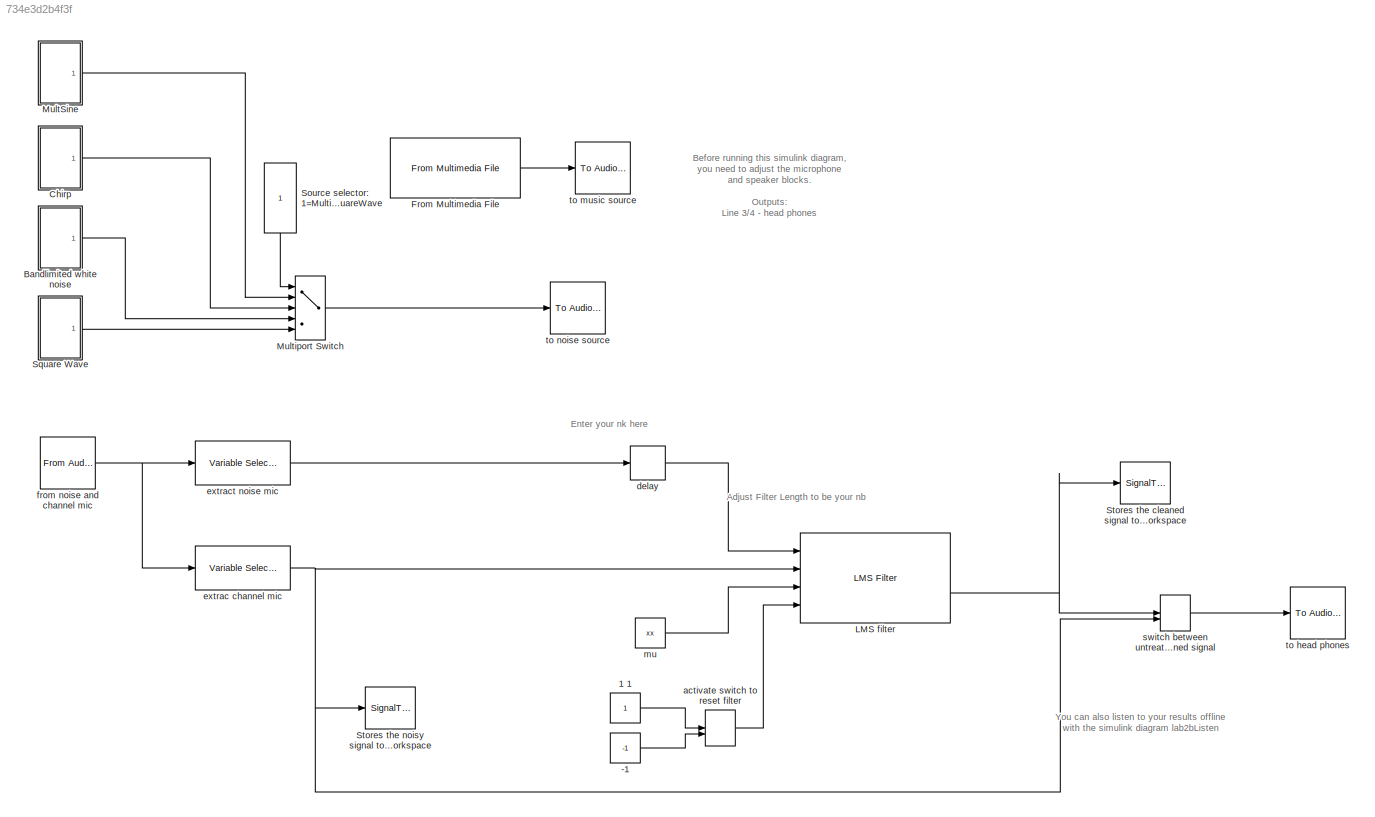
MODEL slx_734e3d2b4f3f
KIND model
BLOCK [Constant] -1
  Value = -1
BLOCK [Constant] 1 1
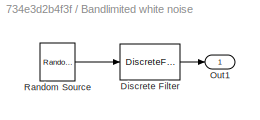
BLOCK [SubSystem] Bandlimited white noise
  Ports = [0, 1]
  RequestExecContextInheritance = off
BLOCK [DiscreteFilter] Bandlimited white noise/Discrete Filter
  Denominator = [1.000000 -0.000000 -2.547368 0.000000 2.994845 -0.000000 -1.778046 0.000000 0.534570 -0.000000 -0.024287]
  InputPortMap = u0
  Numerator = [0.277472 0.000000 -1.387362 0.000000 2.774724 0.000000 -2.774724 0.000000 1.387362 0.000000 -0.277472]*0.3
  Ports = [1, 1]
  SampleTime = sampletime
BLOCK [Outport] Bandlimited white noise/Out1
  IconDisplay = Port number
BLOCK [Reference] Bandlimited white noise/Random Source  REF=dspsrcs4/Random
Source
  CltLength = 12
  DataType = Double
  IsInherit = off
  MaxVal = 1
  MeanVal = 0
  MinVal = -1
  NormMethod = Ziggurat
  OutComplex = Real
  Ports = [0, 1]
  RepMode = Specify seed
  SampFrame = 1
  SampMode = Discrete
  SampTime = sampletime
  SourceBlock = dspsrcs4/Random\nSource
  SourceType = Random Source
  SrcType = Gaussian
  UserDataPersistent = on
  VarVal = 0.6
  rawSeed = 1
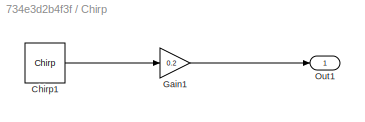
BLOCK [SubSystem] Chirp
  Ports = [0, 1]
  RequestExecContextInheritance = off
BLOCK [Reference] Chirp/Chirp1  REF=dspsrcs4/Chirp
  Ports = [0, 1]
  SourceBlock = dspsrcs4/Chirp
  SourceType = Chirp
  Ts = sampletime
  Tsweep = 10
  datatype = Double
  f0 = 600
  f1 = 800
  mode = Bidirectional
  phase = 0
  spf = 1
  sweep = Linear
  t1 = 1
BLOCK [Gain] Chirp/Gain1
  Gain = 0.2
BLOCK [Outport] Chirp/Out1
  IconDisplay = Port number
BLOCK [Reference] From Multimedia File  REF=dspvision/From Multimedia File
  Ports = [0, 1]
  SourceBlock = dspvision/From Multimedia File
  SourceType = From Multimedia File
  audioDataType = double
  audioFrameSize = 1024
  colorVideoFormat = Separate color signals
  computeAudioFrameSize = off
  dataOrg = Column-major
  fourcc = RGB
  inheritSampleTime = on
  inputFilename = guns.wav
  isIntensityVideo = off
  loop = on
  noAudioOutput = off
  numPlays = inf
  outSamplingMode = Frame based
  outputEOF = off
  outputStreams = Audio only
  userDefinedSampleTime = 1/30
  videoDataType = single
BLOCK [Reference] LMS filter  REF=dspadpt3/LMS Filter
  Adapt = off
  Algo = LMS
  L = xx
  LockScale = off
  Ports = [4, 2]
  ShowPortLabels = off
  SourceBlock = dspadpt3/LMS Filter
  SourceType = LMS Filter
  accum2FracLength = 20
  accum2Mode = User-defined
  accumFracLength = 20
  accumMode = Same as first input
  accumWordLength = 32
  addnparflag = off
  firstCoeffFracLength = 15
  firstCoeffMode = Same word length as first input
  firstCoeffWordLength = 16
  ic = 0
  leakage = 1.0
  memoryFracLength = 15
  memoryMode = Same as first input
  memoryWordLength = 16
  mu = 0.5
  overflowMode = off
  prodOutput2FracLength = 20
  prodOutput2Mode = User-defined
  prodOutput3FracLength = 20
  prodOutput3Mode = User-defined
  prodOutput4FracLength = 20
  prodOutput4Mode = User-defined
  prodOutputFracLength = 20
  prodOutputMode = Same as first input
  prodOutputWordLength = 32
  quotientFracLength = 20
  quotientMode = User-defined
  resetflag = Either edge
  roundingMode = Floor
  secondCoeffFracLength = 15
  secondCoeffMode = User-defined
  secondCoeffWordLength = 2
  stepflag = Input port
  weights = off
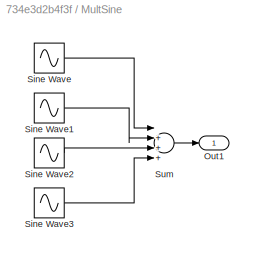
BLOCK [SubSystem] MultSine
  Ports = [0, 1]
  RequestExecContextInheritance = off
BLOCK [Outport] MultSine/Out1
  IconDisplay = Port number
BLOCK [Sin] MultSine/Sine Wave
  Amplitude = .1
  Frequency = 2*2400
  Ports = [0, 1]
  SampleTime = sampletime
BLOCK [Sin] MultSine/Sine Wave1
  Amplitude = .1
  Frequency = 2*3000
  Ports = [0, 1]
  SampleTime = sampletime
BLOCK [Sin] MultSine/Sine Wave2
  Amplitude = .1
  Frequency = 2*3600
  Ports = [0, 1]
  SampleTime = sampletime
BLOCK [Sin] MultSine/Sine Wave3
  Amplitude = .1
  Frequency = 2*4200
  Ports = [0, 1]
  SampleTime = sampletime
BLOCK [Sum] MultSine/Sum
  Inputs = |++++
  Ports = [4, 1]
BLOCK [MultiPortSwitch] Multiport Switch
  Inputs = 4
  Ports = [5, 1]
BLOCK [Constant] Source selector: 1=MultiSine 2=Chirp 3=White noise 4=SquareWave
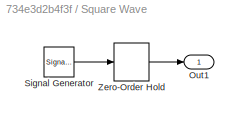
BLOCK [SubSystem] Square Wave
  Ports = [0, 1]
  RequestExecContextInheritance = off
BLOCK [Outport] Square Wave/Out1
  IconDisplay = Port number
BLOCK [SignalGenerator] Square Wave/Signal Generator
  Amplitude = .1
  Frequency = 100
  Ports = [0, 1]
  WaveForm = square
BLOCK [ZeroOrderHold] Square Wave/Zero-Order Hold
  SampleTime = sampletime
BLOCK [SignalToWorkspace] Stores the cleaned signal to the workspace
  CopyFcn = dspblkcopystw(gcbh);
  MaxDataPoints = inf
  Ports = [1]
  SaveFormat = Timeseries
  VariableName = yCleaned
BLOCK [SignalToWorkspace] Stores the noisy signal to the workspace
  CopyFcn = dspblkcopystw(gcbh);
  MaxDataPoints = inf
  Ports = [1]
  SaveFormat = Timeseries
  VariableName = yNoisy
BLOCK [ManualSwitch] activate switch to reset filter
BLOCK [Delay] delay
  DelayLength = xx
  InitialCondition = 0
  InputPortMap = u0
  InputProcessing = Inherited
  Ports = [1, 1]
BLOCK [Reference] extrac channel mic  REF=dspindex/Variable
Selector
  Elements = [2]
  FillMode = on
  FillValues = 0
  IdxMode = Fixed
  NumInputs = 1
  Ports = [1, 1]
  ShowPortLabels = off
  SourceBlock = dspindex/Variable\nSelector
  SourceType = Variable Selector
  ZerOneIdxMode = One-based
  errmode = Clip Index
  rowsOrCols = Columns
BLOCK [Reference] extract noise mic  REF=dspindex/Variable
Selector
  Elements = [1]
  FillMode = on
  FillValues = 0
  IdxMode = Fixed
  NumInputs = 1
  Ports = [1, 1]
  ShowPortLabels = off
  SourceBlock = dspindex/Variable\nSelector
  SourceType = Variable Selector
  ZerOneIdxMode = One-based
  errmode = Clip Index
  rowsOrCols = Columns
BLOCK [Reference] from noise and channel mic  REF=dspsrcs4/From Audio
Device
  Ports = [0, 1]
  SourceBlock = dspsrcs4/From Audio\nDevice
  SourceType = From Audio Device
  autoBufferSize = on
  bufferSize = 4096
  defaultInputChannelMapping = on
  deviceDatatype = Determine from output data type
  deviceName = FCA1616 Mic 1/2 (3- Behringer FCA1616 WDM)
  frameSize = 1
  inputChannelMapping = 1:2
  numChannels = 2
  outputDatatype = double
  queueDuration = 0.1
  sampleRate = 1/sampletime
BLOCK [Constant] mu 
  Value = xx
BLOCK [ManualSwitch] switch between untreated and cleaned signal
BLOCK [Reference] to head phones   REF=dspsnks4/To Audio
Device
  Ports = [1]
  SourceBlock = dspsnks4/To Audio\nDevice
  SourceType = To Audio Device
  autoBufferSize = on
  bufferSize = 4096
  defaultOutputChannelMapping = on
  deviceDatatype = Determine from input data type
  deviceName = FCA1616 Line 3/4 (3- Behringer FCA1616 WDM)
  inheritSampleRate = off
  outputChannelMapping = 1:2
  queueDuration = 1
  sampleRate = 1/sampletime
BLOCK [Reference] to music source  REF=dspsnks4/To Audio
Device
  Ports = [1]
  SourceBlock = dspsnks4/To Audio\nDevice
  SourceType = To Audio Device
  autoBufferSize = on
  bufferSize = 4096
  defaultOutputChannelMapping = on
  deviceDatatype = Determine from input data type
  deviceName = FCA1616 Line 5/6 (3- Behringer FCA1616 WDM)
  inheritSampleRate = off
  outputChannelMapping = 1:2
  queueDuration = 1.0
  sampleRate = 1/sampletime
BLOCK [Reference] to noise source  REF=dspsnks4/To Audio
Device
  Ports = [1]
  SourceBlock = dspsnks4/To Audio\nDevice
  SourceType = To Audio Device
  autoBufferSize = on
  bufferSize = 4096
  defaultOutputChannelMapping = on
  deviceDatatype = Determine from input data type
  deviceName = FCA1616 Line 7/8 (3- Behringer FCA1616 WDM)
  inheritSampleRate = off
  outputChannelMapping = 1:2
  queueDuration = 1.0
  sampleRate = 1/sampletime
ANNOTATION (root): Adjust Filter Length to be your nb
ANNOTATION (root): Before running this simulink diagram, you need to adjust the microphone and speaker blocks. Outputs: Line 3/4 - head phones Line 5/6 - music source Line 7/8 - noise source Inputs: Mic 1/2 - noise and channel microphone
ANNOTATION (root): Enter your nk here
ANNOTATION (root): You can also listen to your results offline with the simulink diagram lab2bListen
LINE -1:1 -> activate switch to reset filter:2
LINE 1 1:1 -> activate switch to reset filter:1
LINE Bandlimited white noise/Discrete Filter:1 -> Bandlimited white noise/Out1:1
LINE Bandlimited white noise/Random Source:1 -> Bandlimited white noise/Discrete Filter:1
LINE Bandlimited white noise:1 -> Multiport Switch:4
LINE Chirp/Chirp1:1 -> Chirp/Gain1:1
LINE Chirp/Gain1:1 -> Chirp/Out1:1
LINE Chirp:1 -> Multiport Switch:3
LINE From Multimedia File:1 -> to music source:1
NET LMS filter:2 -> Stores the cleaned signal to the workspace:1, switch between untreated and cleaned signal:1
LINE MultSine/Sine Wave1:1 -> MultSine/Sum:2
LINE MultSine/Sine Wave2:1 -> MultSine/Sum:3
LINE MultSine/Sine Wave3:1 -> MultSine/Sum:4
LINE MultSine/Sine Wave:1 -> MultSine/Sum:1
LINE MultSine/Sum:1 -> MultSine/Out1:1
LINE MultSine:1 -> Multiport Switch:2
LINE Multiport Switch:1 -> to noise source:1
LINE Source selector: 1=MultiSine 2=Chirp 3=White noise 4=SquareWave:1 -> Multiport Switch:1
LINE Square Wave/Signal Generator:1 -> Square Wave/Zero-Order Hold:1
LINE Square Wave/Zero-Order Hold:1 -> Square Wave/Out1:1
LINE Square Wave:1 -> Multiport Switch:5
LINE activate switch to reset filter:1 -> LMS filter:4
LINE delay:1 -> LMS filter:1
NET extrac channel mic:1 -> LMS filter:2, Stores the noisy signal to the workspace:1, switch between untreated and cleaned signal:2
LINE extract noise mic:1 -> delay:1
NET from noise and channel mic:1 -> extrac channel mic:1, extract noise mic:1
LINE mu :1 -> LMS filter:3
LINE switch between untreated and cleaned signal:1 -> to head phones :1
note: NET lines group one-source signal fan-out (src -> all destinations, sorted); 1:1 wires keep LINE
